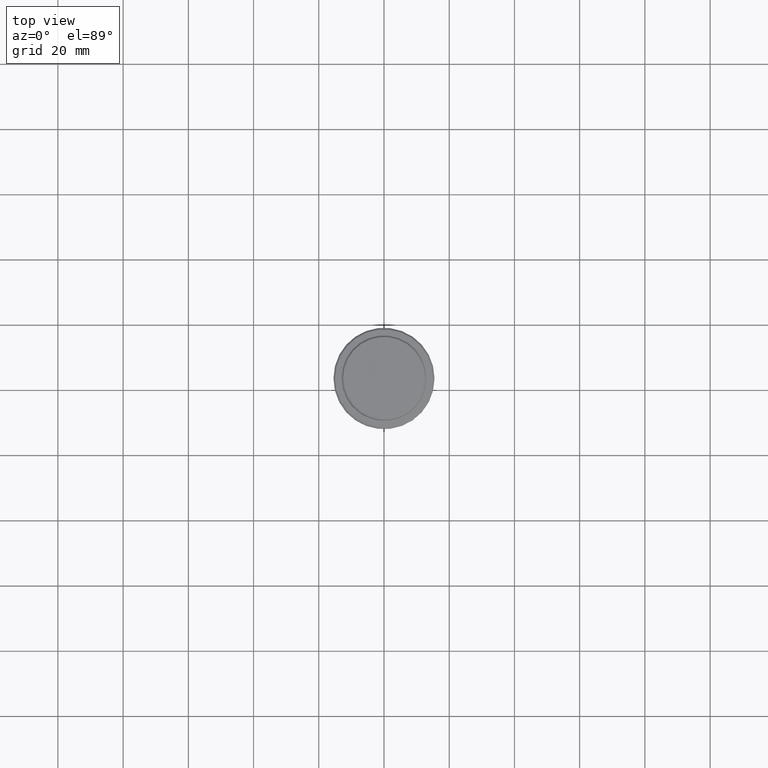
[diagram: clean part render]
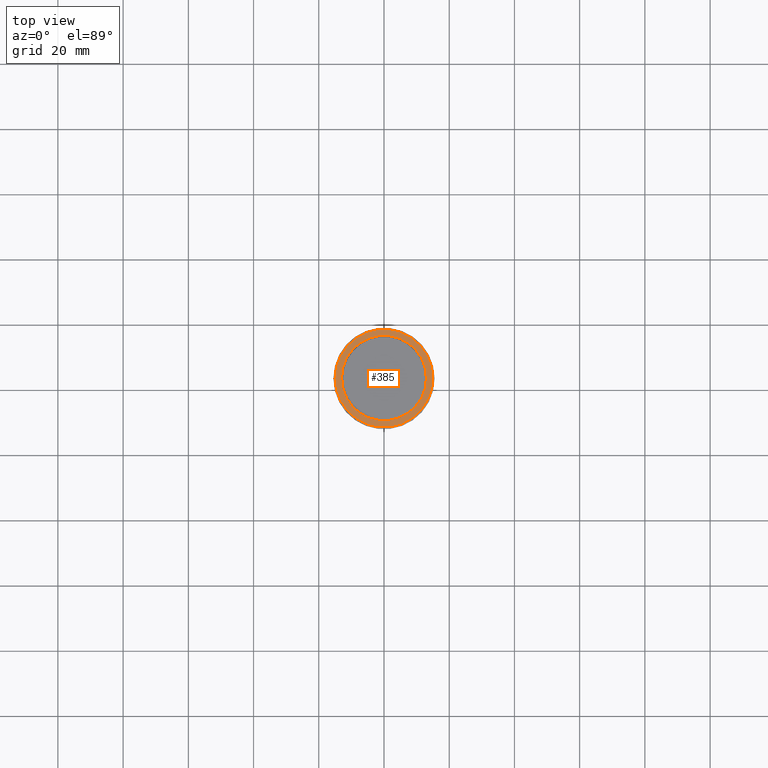
[diagram: same view with one face highlighted and labeled with its STEP entity id]
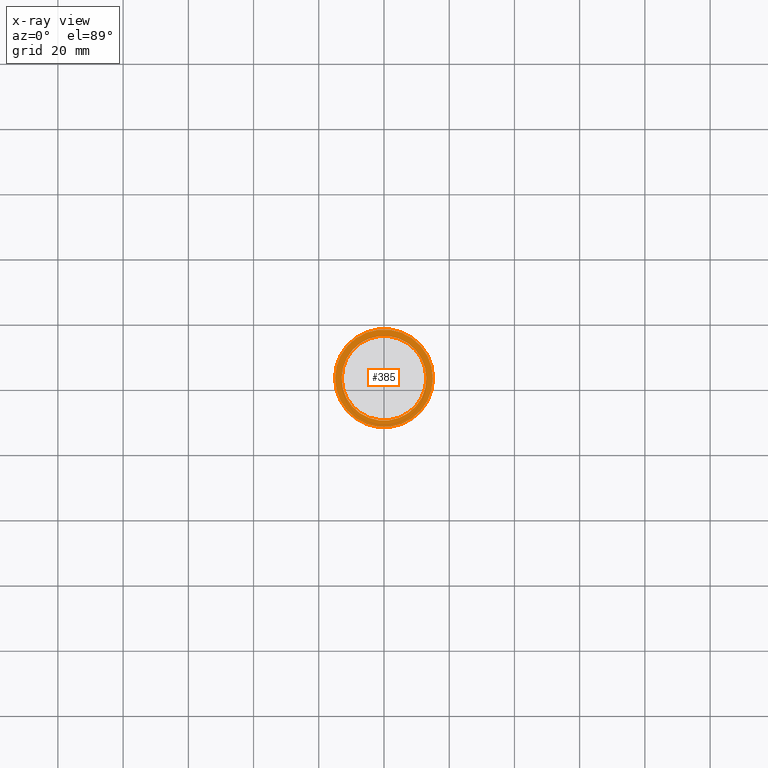
[diagram: x-ray of the same camera — body ghosted, the highlighted face saturated]
A machine part, top view. The second image highlights one B-rep face of the part: STEP entity #385.
The next image is the same camera in x-ray: the body ghosted, the highlighted face saturated — about 0% of this face is hidden behind the body in this view.
In plain terms, the highlighted planar face has unit normal (0, -0, 1).
Its self-contained STEP definition (entity closure, byte-faithful):
#32 = DIRECTION ( 'NONE',  ( 0.000000000000000000, 0.000000000000000000, -1.000000000000000000 ) ) ;
#105 = VERTEX_POINT ( 'NONE', #1107 ) ;
#125 = CARTESIAN_POINT ( 'NONE',  ( 14.99999999999995737, 1.867586368699711009E-15, -9.000000000000000000 ) ) ;
#140 = AXIS2_PLACEMENT_3D ( 'NONE', #1120, #32, #259 ) ;
#142 = AXIS2_PLACEMENT_3D ( 'NONE', #774, #1105, #969 ) ;
#166 = DIRECTION ( 'NONE',  ( 1.000000000000000000, 0.000000000000000000, 0.000000000000000000 ) ) ;
#182 = AXIS2_PLACEMENT_3D ( 'NONE', #703, #908, #1014 ) ;
#190 = VERTEX_POINT ( 'NONE', #705 ) ;
#259 = DIRECTION ( 'NONE',  ( 1.000000000000000000, 0.000000000000000000, 0.000000000000000000 ) ) ;
#291 = EDGE_CURVE ( 'NONE', #610, #190, #953, .T. ) ;
#313 = AXIS2_PLACEMENT_3D ( 'NONE', #360, #1145, #166 ) ;
#360 = CARTESIAN_POINT ( 'NONE',  ( 0.000000000000000000, 0.000000000000000000, -9.000000000000000000 ) ) ;
#385 = ADVANCED_FACE ( 'NONE', ( #637, #520 ), #857, .T. ) ;
#460 = CIRCLE ( 'NONE', #182, 14.99999999999995737 ) ;
#476 = EDGE_LOOP ( 'NONE', ( #1388, #820 ) ) ;
#520 = FACE_BOUND ( 'NONE', #708, .T. ) ;
#525 = AXIS2_PLACEMENT_3D ( 'NONE', #526, #1293, #837 ) ;
#526 = CARTESIAN_POINT ( 'NONE',  ( 0.000000000000000000, 12.49999999999999289, -9.000000000000000000 ) ) ;
#610 = VERTEX_POINT ( 'NONE', #1337 ) ;
#637 = FACE_OUTER_BOUND ( 'NONE', #476, .T. ) ;
#638 = EDGE_CURVE ( 'NONE', #190, #610, #1056, .T. ) ;
#703 = CARTESIAN_POINT ( 'NONE',  ( 0.000000000000000000, 0.000000000000000000, -9.000000000000000000 ) ) ;
#705 = CARTESIAN_POINT ( 'NONE',  ( -12.99999999999999467, 1.592040838891558504E-15, -9.000000000000000000 ) ) ;
#708 = EDGE_LOOP ( 'NONE', ( #1266, #1210 ) ) ;
#774 = CARTESIAN_POINT ( 'NONE',  ( 0.000000000000000000, 0.000000000000000000, -9.000000000000000000 ) ) ;
#820 = ORIENTED_EDGE ( 'NONE', *, *, #1144, .T. ) ;
#837 = DIRECTION ( 'NONE',  ( 1.000000000000000000, 0.000000000000000000, 0.000000000000000000 ) ) ;
#857 = PLANE ( 'NONE',  #525 ) ;
#908 = DIRECTION ( 'NONE',  ( -0.000000000000000000, -0.000000000000000000, 1.000000000000000000 ) ) ;
#933 = VERTEX_POINT ( 'NONE', #125 ) ;
#953 = CIRCLE ( 'NONE', #313, 12.99999999999999467 ) ;
#969 = DIRECTION ( 'NONE',  ( 1.000000000000000000, 0.000000000000000000, 0.000000000000000000 ) ) ;
#970 = EDGE_CURVE ( 'NONE', #105, #933, #1208, .T. ) ;
#1014 = DIRECTION ( 'NONE',  ( 1.000000000000000000, 0.000000000000000000, 0.000000000000000000 ) ) ;
#1056 = CIRCLE ( 'NONE', #140, 12.99999999999999467 ) ;
#1105 = DIRECTION ( 'NONE',  ( -0.000000000000000000, -0.000000000000000000, 1.000000000000000000 ) ) ;
#1107 = CARTESIAN_POINT ( 'NONE',  ( -14.99999999999995737, 0.000000000000000000, -9.000000000000000000 ) ) ;
#1120 = CARTESIAN_POINT ( 'NONE',  ( 0.000000000000000000, 0.000000000000000000, -9.000000000000000000 ) ) ;
#1144 = EDGE_CURVE ( 'NONE', #933, #105, #460, .T. ) ;
#1145 = DIRECTION ( 'NONE',  ( 0.000000000000000000, 0.000000000000000000, -1.000000000000000000 ) ) ;
#1208 = CIRCLE ( 'NONE', #142, 14.99999999999995737 ) ;
#1210 = ORIENTED_EDGE ( 'NONE', *, *, #638, .T. ) ;
#1266 = ORIENTED_EDGE ( 'NONE', *, *, #291, .T. ) ;
#1293 = DIRECTION ( 'NONE',  ( 0.000000000000000000, -0.000000000000000000, 1.000000000000000000 ) ) ;
#1337 = CARTESIAN_POINT ( 'NONE',  ( 12.99999999999999467, 0.000000000000000000, -9.000000000000000000 ) ) ;
#1388 = ORIENTED_EDGE ( 'NONE', *, *, #970, .T. ) ;